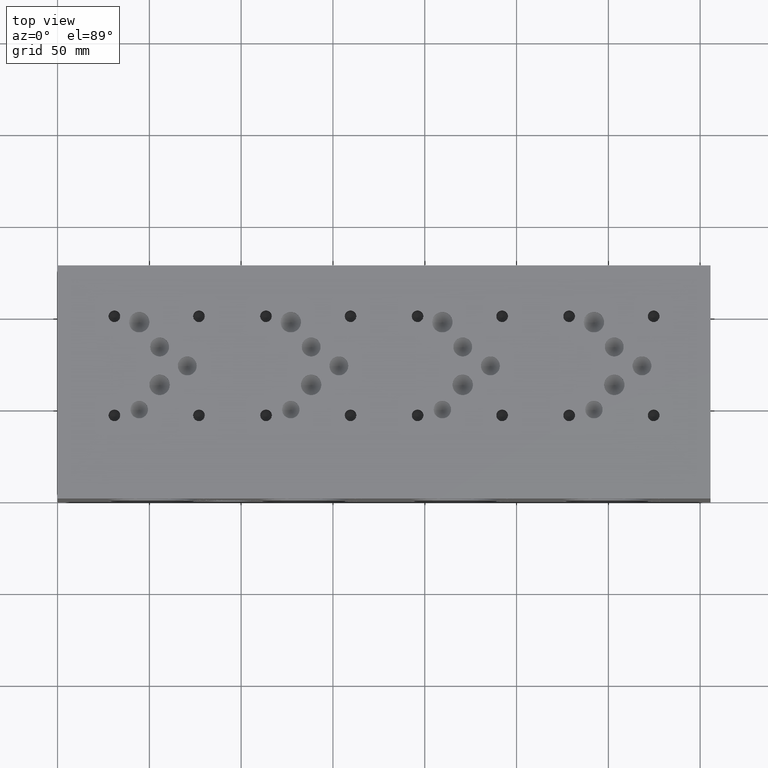
[diagram: clean part render]
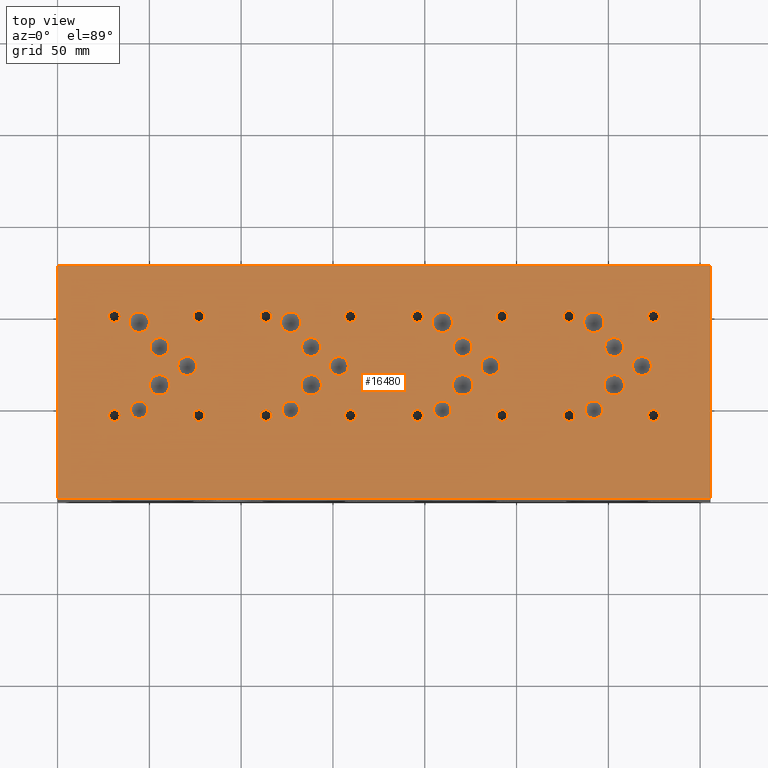
[diagram: same view with one face highlighted and labeled with its STEP entity id]
A machine part, top view. The second image highlights one B-rep face of the part: STEP entity #16480.
In plain terms, the highlighted planar face has unit normal (0, 0, 1).
Its self-contained STEP definition (entity closure, byte-faithful):
#591=CIRCLE('',#17084,4.7625);
#592=CIRCLE('',#17085,4.7625);
#595=CIRCLE('',#17090,4.7625);
#596=CIRCLE('',#17091,4.7625);
#599=CIRCLE('',#17096,4.7625);
#600=CIRCLE('',#17097,4.7625);
#603=CIRCLE('',#17102,4.7625);
#604=CIRCLE('',#17103,4.7625);
#607=CIRCLE('',#17108,5.5626);
#608=CIRCLE('',#17109,5.5626);
#611=CIRCLE('',#17114,5.5626);
#612=CIRCLE('',#17115,5.5626);
#615=CIRCLE('',#17120,5.5626);
#616=CIRCLE('',#17121,5.5626);
#619=CIRCLE('',#17126,5.5626);
#620=CIRCLE('',#17127,5.5626);
#623=CIRCLE('',#17132,5.5626);
#624=CIRCLE('',#17133,5.5626);
#627=CIRCLE('',#17138,5.5626);
#628=CIRCLE('',#17139,5.5626);
#631=CIRCLE('',#17144,5.5626);
#632=CIRCLE('',#17145,5.5626);
#635=CIRCLE('',#17150,5.5626);
#636=CIRCLE('',#17151,5.5626);
#639=CIRCLE('',#17156,5.1562);
#640=CIRCLE('',#17157,5.1562);
#643=CIRCLE('',#17162,5.1562);
#644=CIRCLE('',#17163,5.1562);
#647=CIRCLE('',#17168,5.1562);
#648=CIRCLE('',#17169,5.1562);
#651=CIRCLE('',#17174,5.1562);
#652=CIRCLE('',#17175,5.1562);
#655=CIRCLE('',#17180,5.1562);
#656=CIRCLE('',#17181,5.1562);
#659=CIRCLE('',#17186,5.1562);
#660=CIRCLE('',#17187,5.1562);
#663=CIRCLE('',#17192,5.1562);
#664=CIRCLE('',#17193,5.1562);
#667=CIRCLE('',#17198,5.1562);
#668=CIRCLE('',#17199,5.1562);
#674=CIRCLE('',#17208,3.175);
#675=CIRCLE('',#17209,3.175);
#681=CIRCLE('',#17219,3.175);
#682=CIRCLE('',#17220,3.175);
#688=CIRCLE('',#17230,3.175);
#689=CIRCLE('',#17231,3.175);
#695=CIRCLE('',#17241,3.175);
#696=CIRCLE('',#17242,3.175);
#702=CIRCLE('',#17252,3.175);
#703=CIRCLE('',#17253,3.175);
#709=CIRCLE('',#17263,3.175);
#710=CIRCLE('',#17264,3.175);
#716=CIRCLE('',#17274,3.175);
#717=CIRCLE('',#17275,3.175);
#723=CIRCLE('',#17285,3.175);
#724=CIRCLE('',#17286,3.175);
#730=CIRCLE('',#17296,3.175);
#731=CIRCLE('',#17297,3.175);
#737=CIRCLE('',#17307,3.175);
#738=CIRCLE('',#17308,3.175);
#744=CIRCLE('',#17318,3.175);
#745=CIRCLE('',#17319,3.175);
#751=CIRCLE('',#17329,3.175);
#752=CIRCLE('',#17330,3.175);
#758=CIRCLE('',#17340,3.175);
#759=CIRCLE('',#17341,3.175);
#765=CIRCLE('',#17351,3.175);
#766=CIRCLE('',#17352,3.175);
#772=CIRCLE('',#17362,3.175);
#773=CIRCLE('',#17363,3.175);
#779=CIRCLE('',#17373,3.175);
#780=CIRCLE('',#17374,3.175);
#1449=FACE_BOUND('',#3334,.T.);
#1450=FACE_BOUND('',#3335,.T.);
#1451=FACE_BOUND('',#3336,.T.);
#1452=FACE_BOUND('',#3337,.T.);
#1453=FACE_BOUND('',#3338,.T.);
#1454=FACE_BOUND('',#3339,.T.);
#1455=FACE_BOUND('',#3340,.T.);
#1456=FACE_BOUND('',#3341,.T.);
#1457=FACE_BOUND('',#3342,.T.);
#1458=FACE_BOUND('',#3343,.T.);
#1459=FACE_BOUND('',#3344,.T.);
#1460=FACE_BOUND('',#3345,.T.);
#1461=FACE_BOUND('',#3346,.T.);
#1462=FACE_BOUND('',#3347,.T.);
#1463=FACE_BOUND('',#3348,.T.);
#1464=FACE_BOUND('',#3349,.T.);
#1465=FACE_BOUND('',#3350,.T.);
#1466=FACE_BOUND('',#3351,.T.);
#1467=FACE_BOUND('',#3352,.T.);
#1468=FACE_BOUND('',#3353,.T.);
#1469=FACE_BOUND('',#3354,.T.);
#1470=FACE_BOUND('',#3355,.T.);
#1471=FACE_BOUND('',#3356,.T.);
#1472=FACE_BOUND('',#3357,.T.);
#1473=FACE_BOUND('',#3358,.T.);
#1474=FACE_BOUND('',#3359,.T.);
#1475=FACE_BOUND('',#3360,.T.);
#1476=FACE_BOUND('',#3361,.T.);
#1477=FACE_BOUND('',#3362,.T.);
#1478=FACE_BOUND('',#3363,.T.);
#1479=FACE_BOUND('',#3364,.T.);
#1480=FACE_BOUND('',#3365,.T.);
#1481=FACE_BOUND('',#3366,.T.);
#1482=FACE_BOUND('',#3367,.T.);
#1483=FACE_BOUND('',#3368,.T.);
#1484=FACE_BOUND('',#3369,.T.);
#2348=FACE_OUTER_BOUND('',#3333,.T.);
#3333=EDGE_LOOP('',(#14566,#14567,#14568,#14569));
#3334=EDGE_LOOP('',(#14570,#14571));
#3335=EDGE_LOOP('',(#14572,#14573));
#3336=EDGE_LOOP('',(#14574,#14575));
#3337=EDGE_LOOP('',(#14576,#14577));
#3338=EDGE_LOOP('',(#14578,#14579));
#3339=EDGE_LOOP('',(#14580,#14581));
#3340=EDGE_LOOP('',(#14582,#14583));
#3341=EDGE_LOOP('',(#14584,#14585));
#3342=EDGE_LOOP('',(#14586,#14587));
#3343=EDGE_LOOP('',(#14588,#14589));
#3344=EDGE_LOOP('',(#14590,#14591));
#3345=EDGE_LOOP('',(#14592,#14593));
#3346=EDGE_LOOP('',(#14594,#14595));
#3347=EDGE_LOOP('',(#14596,#14597));
#3348=EDGE_LOOP('',(#14598,#14599));
#3349=EDGE_LOOP('',(#14600,#14601));
#3350=EDGE_LOOP('',(#14602,#14603));
#3351=EDGE_LOOP('',(#14604,#14605));
#3352=EDGE_LOOP('',(#14606,#14607));
#3353=EDGE_LOOP('',(#14608,#14609));
#3354=EDGE_LOOP('',(#14610,#14611));
#3355=EDGE_LOOP('',(#14612,#14613));
#3356=EDGE_LOOP('',(#14614,#14615));
#3357=EDGE_LOOP('',(#14616,#14617));
#3358=EDGE_LOOP('',(#14618,#14619));
#3359=EDGE_LOOP('',(#14620,#14621));
#3360=EDGE_LOOP('',(#14622,#14623));
#3361=EDGE_LOOP('',(#14624,#14625));
#3362=EDGE_LOOP('',(#14626,#14627));
#3363=EDGE_LOOP('',(#14628,#14629));
#3364=EDGE_LOOP('',(#14630,#14631));
#3365=EDGE_LOOP('',(#14632,#14633));
#3366=EDGE_LOOP('',(#14634,#14635));
#3367=EDGE_LOOP('',(#14636,#14637));
#3368=EDGE_LOOP('',(#14638,#14639));
#3369=EDGE_LOOP('',(#14640,#14641));
#3406=LINE('',#21515,#4817);
#4443=LINE('',#26752,#5854);
#4486=LINE('',#26989,#5897);
#4781=LINE('',#28631,#6192);
#4817=VECTOR('',#17736,10.);
#5854=VECTOR('',#19477,10.);
#5897=VECTOR('',#19554,10.);
#6192=VECTOR('',#21431,10.);
#6217=VERTEX_POINT('',#21512);
#6218=VERTEX_POINT('',#21514);
#7170=VERTEX_POINT('',#26751);
#7219=VERTEX_POINT('',#26987);
#7369=VERTEX_POINT('',#27448);
#7370=VERTEX_POINT('',#27449);
#7374=VERTEX_POINT('',#27461);
#7375=VERTEX_POINT('',#27462);
#7379=VERTEX_POINT('',#27474);
#7380=VERTEX_POINT('',#27475);
#7384=VERTEX_POINT('',#27487);
#7385=VERTEX_POINT('',#27488);
#7389=VERTEX_POINT('',#27500);
#7390=VERTEX_POINT('',#27501);
#7394=VERTEX_POINT('',#27513);
#7395=VERTEX_POINT('',#27514);
#7399=VERTEX_POINT('',#27526);
#7400=VERTEX_POINT('',#27527);
#7404=VERTEX_POINT('',#27539);
#7405=VERTEX_POINT('',#27540);
#7409=VERTEX_POINT('',#27552);
#7410=VERTEX_POINT('',#27553);
#7414=VERTEX_POINT('',#27565);
#7415=VERTEX_POINT('',#27566);
#7419=VERTEX_POINT('',#27578);
#7420=VERTEX_POINT('',#27579);
#7424=VERTEX_POINT('',#27591);
#7425=VERTEX_POINT('',#27592);
#7429=VERTEX_POINT('',#27604);
#7430=VERTEX_POINT('',#27605);
#7434=VERTEX_POINT('',#27617);
#7435=VERTEX_POINT('',#27618);
#7439=VERTEX_POINT('',#27630);
#7440=VERTEX_POINT('',#27631);
#7444=VERTEX_POINT('',#27643);
#7445=VERTEX_POINT('',#27644);
#7449=VERTEX_POINT('',#27656);
#7450=VERTEX_POINT('',#27657);
#7454=VERTEX_POINT('',#27669);
#7455=VERTEX_POINT('',#27670);
#7459=VERTEX_POINT('',#27682);
#7460=VERTEX_POINT('',#27683);
#7464=VERTEX_POINT('',#27695);
#7465=VERTEX_POINT('',#27696);
#7472=VERTEX_POINT('',#27715);
#7473=VERTEX_POINT('',#27716);
#7480=VERTEX_POINT('',#27737);
#7481=VERTEX_POINT('',#27738);
#7488=VERTEX_POINT('',#27759);
#7489=VERTEX_POINT('',#27760);
#7496=VERTEX_POINT('',#27781);
#7497=VERTEX_POINT('',#27782);
#7504=VERTEX_POINT('',#27803);
#7505=VERTEX_POINT('',#27804);
#7512=VERTEX_POINT('',#27825);
#7513=VERTEX_POINT('',#27826);
#7520=VERTEX_POINT('',#27847);
#7521=VERTEX_POINT('',#27848);
#7528=VERTEX_POINT('',#27869);
#7529=VERTEX_POINT('',#27870);
#7536=VERTEX_POINT('',#27891);
#7537=VERTEX_POINT('',#27892);
#7544=VERTEX_POINT('',#27913);
#7545=VERTEX_POINT('',#27914);
#7552=VERTEX_POINT('',#27935);
#7553=VERTEX_POINT('',#27936);
#7560=VERTEX_POINT('',#27957);
#7561=VERTEX_POINT('',#27958);
#7568=VERTEX_POINT('',#27979);
#7569=VERTEX_POINT('',#27980);
#7576=VERTEX_POINT('',#28001);
#7577=VERTEX_POINT('',#28002);
#7584=VERTEX_POINT('',#28023);
#7585=VERTEX_POINT('',#28024);
#7592=VERTEX_POINT('',#28045);
#7593=VERTEX_POINT('',#28046);
#7811=EDGE_CURVE('',#6218,#6217,#3406,.T.);
#9229=EDGE_CURVE('',#7170,#6218,#4443,.T.);
#9295=EDGE_CURVE('',#6217,#7219,#4486,.T.);
#9514=EDGE_CURVE('',#7369,#7370,#591,.T.);
#9515=EDGE_CURVE('',#7370,#7369,#592,.T.);
#9520=EDGE_CURVE('',#7374,#7375,#595,.T.);
#9521=EDGE_CURVE('',#7375,#7374,#596,.T.);
#9526=EDGE_CURVE('',#7379,#7380,#599,.T.);
#9527=EDGE_CURVE('',#7380,#7379,#600,.T.);
#9532=EDGE_CURVE('',#7384,#7385,#603,.T.);
#9533=EDGE_CURVE('',#7385,#7384,#604,.T.);
#9538=EDGE_CURVE('',#7389,#7390,#607,.T.);
#9539=EDGE_CURVE('',#7390,#7389,#608,.T.);
#9544=EDGE_CURVE('',#7394,#7395,#611,.T.);
#9545=EDGE_CURVE('',#7395,#7394,#612,.T.);
#9550=EDGE_CURVE('',#7399,#7400,#615,.T.);
#9551=EDGE_CURVE('',#7400,#7399,#616,.T.);
#9556=EDGE_CURVE('',#7404,#7405,#619,.T.);
#9557=EDGE_CURVE('',#7405,#7404,#620,.T.);
#9562=EDGE_CURVE('',#7409,#7410,#623,.T.);
#9563=EDGE_CURVE('',#7410,#7409,#624,.T.);
#9568=EDGE_CURVE('',#7414,#7415,#627,.T.);
#9569=EDGE_CURVE('',#7415,#7414,#628,.T.);
#9574=EDGE_CURVE('',#7419,#7420,#631,.T.);
#9575=EDGE_CURVE('',#7420,#7419,#632,.T.);
#9580=EDGE_CURVE('',#7424,#7425,#635,.T.);
#9581=EDGE_CURVE('',#7425,#7424,#636,.T.);
#9586=EDGE_CURVE('',#7429,#7430,#639,.T.);
#9587=EDGE_CURVE('',#7430,#7429,#640,.T.);
#9592=EDGE_CURVE('',#7434,#7435,#643,.T.);
#9593=EDGE_CURVE('',#7435,#7434,#644,.T.);
#9598=EDGE_CURVE('',#7439,#7440,#647,.T.);
#9599=EDGE_CURVE('',#7440,#7439,#648,.T.);
#9604=EDGE_CURVE('',#7444,#7445,#651,.T.);
#9605=EDGE_CURVE('',#7445,#7444,#652,.T.);
#9610=EDGE_CURVE('',#7449,#7450,#655,.T.);
#9611=EDGE_CURVE('',#7450,#7449,#656,.T.);
#9616=EDGE_CURVE('',#7454,#7455,#659,.T.);
#9617=EDGE_CURVE('',#7455,#7454,#660,.T.);
#9622=EDGE_CURVE('',#7459,#7460,#663,.T.);
#9623=EDGE_CURVE('',#7460,#7459,#664,.T.);
#9628=EDGE_CURVE('',#7464,#7465,#667,.T.);
#9629=EDGE_CURVE('',#7465,#7464,#668,.T.);
#9637=EDGE_CURVE('',#7472,#7473,#674,.T.);
#9638=EDGE_CURVE('',#7473,#7472,#675,.T.);
#9647=EDGE_CURVE('',#7480,#7481,#681,.T.);
#9648=EDGE_CURVE('',#7481,#7480,#682,.T.);
#9657=EDGE_CURVE('',#7488,#7489,#688,.T.);
#9658=EDGE_CURVE('',#7489,#7488,#689,.T.);
#9667=EDGE_CURVE('',#7496,#7497,#695,.T.);
#9668=EDGE_CURVE('',#7497,#7496,#696,.T.);
#9677=EDGE_CURVE('',#7504,#7505,#702,.T.);
#9678=EDGE_CURVE('',#7505,#7504,#703,.T.);
#9687=EDGE_CURVE('',#7512,#7513,#709,.T.);
#9688=EDGE_CURVE('',#7513,#7512,#710,.T.);
#9697=EDGE_CURVE('',#7520,#7521,#716,.T.);
#9698=EDGE_CURVE('',#7521,#7520,#717,.T.);
#9707=EDGE_CURVE('',#7528,#7529,#723,.T.);
#9708=EDGE_CURVE('',#7529,#7528,#724,.T.);
#9717=EDGE_CURVE('',#7536,#7537,#730,.T.);
#9718=EDGE_CURVE('',#7537,#7536,#731,.T.);
#9727=EDGE_CURVE('',#7544,#7545,#737,.T.);
#9728=EDGE_CURVE('',#7545,#7544,#738,.T.);
#9737=EDGE_CURVE('',#7552,#7553,#744,.T.);
#9738=EDGE_CURVE('',#7553,#7552,#745,.T.);
#9747=EDGE_CURVE('',#7560,#7561,#751,.T.);
#9748=EDGE_CURVE('',#7561,#7560,#752,.T.);
#9757=EDGE_CURVE('',#7568,#7569,#758,.T.);
#9758=EDGE_CURVE('',#7569,#7568,#759,.T.);
#9767=EDGE_CURVE('',#7576,#7577,#765,.T.);
#9768=EDGE_CURVE('',#7577,#7576,#766,.T.);
#9777=EDGE_CURVE('',#7584,#7585,#772,.T.);
#9778=EDGE_CURVE('',#7585,#7584,#773,.T.);
#9787=EDGE_CURVE('',#7592,#7593,#779,.T.);
#9788=EDGE_CURVE('',#7593,#7592,#780,.T.);
#10065=EDGE_CURVE('',#7219,#7170,#4781,.T.);
#14566=ORIENTED_EDGE('',*,*,#7811,.T.);
#14567=ORIENTED_EDGE('',*,*,#9295,.T.);
#14568=ORIENTED_EDGE('',*,*,#10065,.T.);
#14569=ORIENTED_EDGE('',*,*,#9229,.T.);
#14570=ORIENTED_EDGE('',*,*,#9514,.T.);
#14571=ORIENTED_EDGE('',*,*,#9515,.T.);
#14572=ORIENTED_EDGE('',*,*,#9520,.T.);
#14573=ORIENTED_EDGE('',*,*,#9521,.T.);
#14574=ORIENTED_EDGE('',*,*,#9526,.T.);
#14575=ORIENTED_EDGE('',*,*,#9527,.T.);
#14576=ORIENTED_EDGE('',*,*,#9532,.T.);
#14577=ORIENTED_EDGE('',*,*,#9533,.T.);
#14578=ORIENTED_EDGE('',*,*,#9538,.T.);
#14579=ORIENTED_EDGE('',*,*,#9539,.T.);
#14580=ORIENTED_EDGE('',*,*,#9544,.T.);
#14581=ORIENTED_EDGE('',*,*,#9545,.T.);
#14582=ORIENTED_EDGE('',*,*,#9550,.T.);
#14583=ORIENTED_EDGE('',*,*,#9551,.T.);
#14584=ORIENTED_EDGE('',*,*,#9556,.T.);
#14585=ORIENTED_EDGE('',*,*,#9557,.T.);
#14586=ORIENTED_EDGE('',*,*,#9562,.T.);
#14587=ORIENTED_EDGE('',*,*,#9563,.T.);
#14588=ORIENTED_EDGE('',*,*,#9568,.T.);
#14589=ORIENTED_EDGE('',*,*,#9569,.T.);
#14590=ORIENTED_EDGE('',*,*,#9574,.T.);
#14591=ORIENTED_EDGE('',*,*,#9575,.T.);
#14592=ORIENTED_EDGE('',*,*,#9580,.T.);
#14593=ORIENTED_EDGE('',*,*,#9581,.T.);
#14594=ORIENTED_EDGE('',*,*,#9586,.T.);
#14595=ORIENTED_EDGE('',*,*,#9587,.T.);
#14596=ORIENTED_EDGE('',*,*,#9592,.T.);
#14597=ORIENTED_EDGE('',*,*,#9593,.T.);
#14598=ORIENTED_EDGE('',*,*,#9598,.T.);
#14599=ORIENTED_EDGE('',*,*,#9599,.T.);
#14600=ORIENTED_EDGE('',*,*,#9604,.T.);
#14601=ORIENTED_EDGE('',*,*,#9605,.T.);
#14602=ORIENTED_EDGE('',*,*,#9610,.T.);
#14603=ORIENTED_EDGE('',*,*,#9611,.T.);
#14604=ORIENTED_EDGE('',*,*,#9616,.T.);
#14605=ORIENTED_EDGE('',*,*,#9617,.T.);
#14606=ORIENTED_EDGE('',*,*,#9622,.T.);
#14607=ORIENTED_EDGE('',*,*,#9623,.T.);
#14608=ORIENTED_EDGE('',*,*,#9628,.T.);
#14609=ORIENTED_EDGE('',*,*,#9629,.T.);
#14610=ORIENTED_EDGE('',*,*,#9637,.T.);
#14611=ORIENTED_EDGE('',*,*,#9638,.T.);
#14612=ORIENTED_EDGE('',*,*,#9647,.T.);
#14613=ORIENTED_EDGE('',*,*,#9648,.T.);
#14614=ORIENTED_EDGE('',*,*,#9657,.T.);
#14615=ORIENTED_EDGE('',*,*,#9658,.T.);
#14616=ORIENTED_EDGE('',*,*,#9667,.T.);
#14617=ORIENTED_EDGE('',*,*,#9668,.T.);
#14618=ORIENTED_EDGE('',*,*,#9677,.T.);
#14619=ORIENTED_EDGE('',*,*,#9678,.T.);
#14620=ORIENTED_EDGE('',*,*,#9687,.T.);
#14621=ORIENTED_EDGE('',*,*,#9688,.T.);
#14622=ORIENTED_EDGE('',*,*,#9697,.T.);
#14623=ORIENTED_EDGE('',*,*,#9698,.T.);
#14624=ORIENTED_EDGE('',*,*,#9707,.T.);
#14625=ORIENTED_EDGE('',*,*,#9708,.T.);
#14626=ORIENTED_EDGE('',*,*,#9717,.T.);
#14627=ORIENTED_EDGE('',*,*,#9718,.T.);
#14628=ORIENTED_EDGE('',*,*,#9727,.T.);
#14629=ORIENTED_EDGE('',*,*,#9728,.T.);
#14630=ORIENTED_EDGE('',*,*,#9737,.T.);
#14631=ORIENTED_EDGE('',*,*,#9738,.T.);
#14632=ORIENTED_EDGE('',*,*,#9747,.T.);
#14633=ORIENTED_EDGE('',*,*,#9748,.T.);
#14634=ORIENTED_EDGE('',*,*,#9757,.T.);
#14635=ORIENTED_EDGE('',*,*,#9758,.T.);
#14636=ORIENTED_EDGE('',*,*,#9767,.T.);
#14637=ORIENTED_EDGE('',*,*,#9768,.T.);
#14638=ORIENTED_EDGE('',*,*,#9777,.T.);
#14639=ORIENTED_EDGE('',*,*,#9778,.T.);
#14640=ORIENTED_EDGE('',*,*,#9787,.T.);
#14641=ORIENTED_EDGE('',*,*,#9788,.T.);
#15073=PLANE('',#17671);
#16480=ADVANCED_FACE('',(#2348,#1449,#1450,#1451,#1452,#1453,#1454,#1455,
#1456,#1457,#1458,#1459,#1460,#1461,#1462,#1463,#1464,#1465,#1466,#1467,
#1468,#1469,#1470,#1471,#1472,#1473,#1474,#1475,#1476,#1477,#1478,#1479,
#1480,#1481,#1482,#1483,#1484),#15073,.T.);
#17084=AXIS2_PLACEMENT_3D('',#27450,#20070,#20071);
#17085=AXIS2_PLACEMENT_3D('',#27451,#20072,#20073);
#17090=AXIS2_PLACEMENT_3D('',#27463,#20084,#20085);
#17091=AXIS2_PLACEMENT_3D('',#27464,#20086,#20087);
#17096=AXIS2_PLACEMENT_3D('',#27476,#20098,#20099);
#17097=AXIS2_PLACEMENT_3D('',#27477,#20100,#20101);
#17102=AXIS2_PLACEMENT_3D('',#27489,#20112,#20113);
#17103=AXIS2_PLACEMENT_3D('',#27490,#20114,#20115);
#17108=AXIS2_PLACEMENT_3D('',#27502,#20126,#20127);
#17109=AXIS2_PLACEMENT_3D('',#27503,#20128,#20129);
#17114=AXIS2_PLACEMENT_3D('',#27515,#20140,#20141);
#17115=AXIS2_PLACEMENT_3D('',#27516,#20142,#20143);
#17120=AXIS2_PLACEMENT_3D('',#27528,#20154,#20155);
#17121=AXIS2_PLACEMENT_3D('',#27529,#20156,#20157);
#17126=AXIS2_PLACEMENT_3D('',#27541,#20168,#20169);
#17127=AXIS2_PLACEMENT_3D('',#27542,#20170,#20171);
#17132=AXIS2_PLACEMENT_3D('',#27554,#20182,#20183);
#17133=AXIS2_PLACEMENT_3D('',#27555,#20184,#20185);
#17138=AXIS2_PLACEMENT_3D('',#27567,#20196,#20197);
#17139=AXIS2_PLACEMENT_3D('',#27568,#20198,#20199);
#17144=AXIS2_PLACEMENT_3D('',#27580,#20210,#20211);
#17145=AXIS2_PLACEMENT_3D('',#27581,#20212,#20213);
#17150=AXIS2_PLACEMENT_3D('',#27593,#20224,#20225);
#17151=AXIS2_PLACEMENT_3D('',#27594,#20226,#20227);
#17156=AXIS2_PLACEMENT_3D('',#27606,#20238,#20239);
#17157=AXIS2_PLACEMENT_3D('',#27607,#20240,#20241);
#17162=AXIS2_PLACEMENT_3D('',#27619,#20252,#20253);
#17163=AXIS2_PLACEMENT_3D('',#27620,#20254,#20255);
#17168=AXIS2_PLACEMENT_3D('',#27632,#20266,#20267);
#17169=AXIS2_PLACEMENT_3D('',#27633,#20268,#20269);
#17174=AXIS2_PLACEMENT_3D('',#27645,#20280,#20281);
#17175=AXIS2_PLACEMENT_3D('',#27646,#20282,#20283);
#17180=AXIS2_PLACEMENT_3D('',#27658,#20294,#20295);
#17181=AXIS2_PLACEMENT_3D('',#27659,#20296,#20297);
#17186=AXIS2_PLACEMENT_3D('',#27671,#20308,#20309);
#17187=AXIS2_PLACEMENT_3D('',#27672,#20310,#20311);
#17192=AXIS2_PLACEMENT_3D('',#27684,#20322,#20323);
#17193=AXIS2_PLACEMENT_3D('',#27685,#20324,#20325);
#17198=AXIS2_PLACEMENT_3D('',#27697,#20336,#20337);
#17199=AXIS2_PLACEMENT_3D('',#27698,#20338,#20339);
#17208=AXIS2_PLACEMENT_3D('',#27717,#20358,#20359);
#17209=AXIS2_PLACEMENT_3D('',#27718,#20360,#20361);
#17219=AXIS2_PLACEMENT_3D('',#27739,#20383,#20384);
#17220=AXIS2_PLACEMENT_3D('',#27740,#20385,#20386);
#17230=AXIS2_PLACEMENT_3D('',#27761,#20408,#20409);
#17231=AXIS2_PLACEMENT_3D('',#27762,#20410,#20411);
#17241=AXIS2_PLACEMENT_3D('',#27783,#20433,#20434);
#17242=AXIS2_PLACEMENT_3D('',#27784,#20435,#20436);
#17252=AXIS2_PLACEMENT_3D('',#27805,#20458,#20459);
#17253=AXIS2_PLACEMENT_3D('',#27806,#20460,#20461);
#17263=AXIS2_PLACEMENT_3D('',#27827,#20483,#20484);
#17264=AXIS2_PLACEMENT_3D('',#27828,#20485,#20486);
#17274=AXIS2_PLACEMENT_3D('',#27849,#20508,#20509);
#17275=AXIS2_PLACEMENT_3D('',#27850,#20510,#20511);
#17285=AXIS2_PLACEMENT_3D('',#27871,#20533,#20534);
#17286=AXIS2_PLACEMENT_3D('',#27872,#20535,#20536);
#17296=AXIS2_PLACEMENT_3D('',#27893,#20558,#20559);
#17297=AXIS2_PLACEMENT_3D('',#27894,#20560,#20561);
#17307=AXIS2_PLACEMENT_3D('',#27915,#20583,#20584);
#17308=AXIS2_PLACEMENT_3D('',#27916,#20585,#20586);
#17318=AXIS2_PLACEMENT_3D('',#27937,#20608,#20609);
#17319=AXIS2_PLACEMENT_3D('',#27938,#20610,#20611);
#17329=AXIS2_PLACEMENT_3D('',#27959,#20633,#20634);
#17330=AXIS2_PLACEMENT_3D('',#27960,#20635,#20636);
#17340=AXIS2_PLACEMENT_3D('',#27981,#20658,#20659);
#17341=AXIS2_PLACEMENT_3D('',#27982,#20660,#20661);
#17351=AXIS2_PLACEMENT_3D('',#28003,#20683,#20684);
#17352=AXIS2_PLACEMENT_3D('',#28004,#20685,#20686);
#17362=AXIS2_PLACEMENT_3D('',#28025,#20708,#20709);
#17363=AXIS2_PLACEMENT_3D('',#28026,#20710,#20711);
#17373=AXIS2_PLACEMENT_3D('',#28047,#20733,#20734);
#17374=AXIS2_PLACEMENT_3D('',#28048,#20735,#20736);
#17671=AXIS2_PLACEMENT_3D('',#28634,#21436,#21437);
#17736=DIRECTION('',(1.,0.,0.));
#19477=DIRECTION('',(0.,-1.,0.));
#19554=DIRECTION('',(0.,1.,0.));
#20070=DIRECTION('center_axis',(0.,0.,-1.));
#20071=DIRECTION('ref_axis',(1.,0.,0.));
#20072=DIRECTION('center_axis',(0.,0.,-1.));
#20073=DIRECTION('ref_axis',(1.,0.,0.));
#20084=DIRECTION('center_axis',(0.,0.,-1.));
#20085=DIRECTION('ref_axis',(1.,0.,0.));
#20086=DIRECTION('center_axis',(0.,0.,-1.));
#20087=DIRECTION('ref_axis',(1.,0.,0.));
#20098=DIRECTION('center_axis',(0.,0.,-1.));
#20099=DIRECTION('ref_axis',(1.,0.,0.));
#20100=DIRECTION('center_axis',(0.,0.,-1.));
#20101=DIRECTION('ref_axis',(1.,0.,0.));
#20112=DIRECTION('center_axis',(0.,0.,-1.));
#20113=DIRECTION('ref_axis',(1.,0.,0.));
#20114=DIRECTION('center_axis',(0.,0.,-1.));
#20115=DIRECTION('ref_axis',(1.,0.,0.));
#20126=DIRECTION('center_axis',(0.,0.,-1.));
#20127=DIRECTION('ref_axis',(1.,0.,0.));
#20128=DIRECTION('center_axis',(0.,0.,-1.));
#20129=DIRECTION('ref_axis',(1.,0.,0.));
#20140=DIRECTION('center_axis',(0.,0.,-1.));
#20141=DIRECTION('ref_axis',(1.,0.,0.));
#20142=DIRECTION('center_axis',(0.,0.,-1.));
#20143=DIRECTION('ref_axis',(1.,0.,0.));
#20154=DIRECTION('center_axis',(0.,0.,-1.));
#20155=DIRECTION('ref_axis',(1.,0.,0.));
#20156=DIRECTION('center_axis',(0.,0.,-1.));
#20157=DIRECTION('ref_axis',(1.,0.,0.));
#20168=DIRECTION('center_axis',(0.,0.,-1.));
#20169=DIRECTION('ref_axis',(1.,0.,0.));
#20170=DIRECTION('center_axis',(0.,0.,-1.));
#20171=DIRECTION('ref_axis',(1.,0.,0.));
#20182=DIRECTION('center_axis',(0.,0.,-1.));
#20183=DIRECTION('ref_axis',(1.,0.,0.));
#20184=DIRECTION('center_axis',(0.,0.,-1.));
#20185=DIRECTION('ref_axis',(1.,0.,0.));
#20196=DIRECTION('center_axis',(0.,0.,-1.));
#20197=DIRECTION('ref_axis',(1.,0.,0.));
#20198=DIRECTION('center_axis',(0.,0.,-1.));
#20199=DIRECTION('ref_axis',(1.,0.,0.));
#20210=DIRECTION('center_axis',(0.,0.,-1.));
#20211=DIRECTION('ref_axis',(1.,0.,0.));
#20212=DIRECTION('center_axis',(0.,0.,-1.));
#20213=DIRECTION('ref_axis',(1.,0.,0.));
#20224=DIRECTION('center_axis',(0.,0.,-1.));
#20225=DIRECTION('ref_axis',(1.,0.,0.));
#20226=DIRECTION('center_axis',(0.,0.,-1.));
#20227=DIRECTION('ref_axis',(1.,0.,0.));
#20238=DIRECTION('center_axis',(0.,0.,-1.));
#20239=DIRECTION('ref_axis',(1.,0.,0.));
#20240=DIRECTION('center_axis',(0.,0.,-1.));
#20241=DIRECTION('ref_axis',(1.,0.,0.));
#20252=DIRECTION('center_axis',(0.,0.,-1.));
#20253=DIRECTION('ref_axis',(1.,0.,0.));
#20254=DIRECTION('center_axis',(0.,0.,-1.));
#20255=DIRECTION('ref_axis',(1.,0.,0.));
#20266=DIRECTION('center_axis',(0.,0.,-1.));
#20267=DIRECTION('ref_axis',(1.,0.,0.));
#20268=DIRECTION('center_axis',(0.,0.,-1.));
#20269=DIRECTION('ref_axis',(1.,0.,0.));
#20280=DIRECTION('center_axis',(0.,0.,-1.));
#20281=DIRECTION('ref_axis',(1.,0.,0.));
#20282=DIRECTION('center_axis',(0.,0.,-1.));
#20283=DIRECTION('ref_axis',(1.,0.,0.));
#20294=DIRECTION('center_axis',(0.,0.,-1.));
#20295=DIRECTION('ref_axis',(1.,0.,0.));
#20296=DIRECTION('center_axis',(0.,0.,-1.));
#20297=DIRECTION('ref_axis',(1.,0.,0.));
#20308=DIRECTION('center_axis',(0.,0.,-1.));
#20309=DIRECTION('ref_axis',(1.,0.,0.));
#20310=DIRECTION('center_axis',(0.,0.,-1.));
#20311=DIRECTION('ref_axis',(1.,0.,0.));
#20322=DIRECTION('center_axis',(0.,0.,-1.));
#20323=DIRECTION('ref_axis',(1.,0.,0.));
#20324=DIRECTION('center_axis',(0.,0.,-1.));
#20325=DIRECTION('ref_axis',(1.,0.,0.));
#20336=DIRECTION('center_axis',(0.,0.,-1.));
#20337=DIRECTION('ref_axis',(1.,0.,0.));
#20338=DIRECTION('center_axis',(0.,0.,-1.));
#20339=DIRECTION('ref_axis',(1.,0.,0.));
#20358=DIRECTION('center_axis',(0.,0.,-1.));
#20359=DIRECTION('ref_axis',(1.,0.,0.));
#20360=DIRECTION('center_axis',(0.,0.,-1.));
#20361=DIRECTION('ref_axis',(1.,0.,0.));
#20383=DIRECTION('center_axis',(0.,0.,-1.));
#20384=DIRECTION('ref_axis',(1.,0.,0.));
#20385=DIRECTION('center_axis',(0.,0.,-1.));
#20386=DIRECTION('ref_axis',(1.,0.,0.));
#20408=DIRECTION('center_axis',(0.,0.,-1.));
#20409=DIRECTION('ref_axis',(1.,0.,0.));
#20410=DIRECTION('center_axis',(0.,0.,-1.));
#20411=DIRECTION('ref_axis',(1.,0.,0.));
#20433=DIRECTION('center_axis',(0.,0.,-1.));
#20434=DIRECTION('ref_axis',(1.,0.,0.));
#20435=DIRECTION('center_axis',(0.,0.,-1.));
#20436=DIRECTION('ref_axis',(1.,0.,0.));
#20458=DIRECTION('center_axis',(0.,0.,-1.));
#20459=DIRECTION('ref_axis',(1.,0.,0.));
#20460=DIRECTION('center_axis',(0.,0.,-1.));
#20461=DIRECTION('ref_axis',(1.,0.,0.));
#20483=DIRECTION('center_axis',(0.,0.,-1.));
#20484=DIRECTION('ref_axis',(1.,0.,0.));
#20485=DIRECTION('center_axis',(0.,0.,-1.));
#20486=DIRECTION('ref_axis',(1.,0.,0.));
#20508=DIRECTION('center_axis',(0.,0.,-1.));
#20509=DIRECTION('ref_axis',(1.,0.,0.));
#20510=DIRECTION('center_axis',(0.,0.,-1.));
#20511=DIRECTION('ref_axis',(1.,0.,0.));
#20533=DIRECTION('center_axis',(0.,0.,-1.));
#20534=DIRECTION('ref_axis',(1.,0.,0.));
#20535=DIRECTION('center_axis',(0.,0.,-1.));
#20536=DIRECTION('ref_axis',(1.,0.,0.));
#20558=DIRECTION('center_axis',(0.,0.,-1.));
#20559=DIRECTION('ref_axis',(1.,0.,0.));
#20560=DIRECTION('center_axis',(0.,0.,-1.));
#20561=DIRECTION('ref_axis',(1.,0.,0.));
#20583=DIRECTION('center_axis',(0.,0.,-1.));
#20584=DIRECTION('ref_axis',(1.,0.,0.));
#20585=DIRECTION('center_axis',(0.,0.,-1.));
#20586=DIRECTION('ref_axis',(1.,0.,0.));
#20608=DIRECTION('center_axis',(0.,0.,-1.));
#20609=DIRECTION('ref_axis',(1.,0.,0.));
#20610=DIRECTION('center_axis',(0.,0.,-1.));
#20611=DIRECTION('ref_axis',(1.,0.,0.));
#20633=DIRECTION('center_axis',(0.,0.,-1.));
#20634=DIRECTION('ref_axis',(1.,0.,0.));
#20635=DIRECTION('center_axis',(0.,0.,-1.));
#20636=DIRECTION('ref_axis',(1.,0.,0.));
#20658=DIRECTION('center_axis',(0.,0.,-1.));
#20659=DIRECTION('ref_axis',(1.,0.,0.));
#20660=DIRECTION('center_axis',(0.,0.,-1.));
#20661=DIRECTION('ref_axis',(1.,0.,0.));
#20683=DIRECTION('center_axis',(0.,0.,-1.));
#20684=DIRECTION('ref_axis',(1.,0.,0.));
#20685=DIRECTION('center_axis',(0.,0.,-1.));
#20686=DIRECTION('ref_axis',(1.,0.,0.));
#20708=DIRECTION('center_axis',(0.,0.,-1.));
#20709=DIRECTION('ref_axis',(1.,0.,0.));
#20710=DIRECTION('center_axis',(0.,0.,-1.));
#20711=DIRECTION('ref_axis',(1.,0.,0.));
#20733=DIRECTION('center_axis',(0.,0.,-1.));
#20734=DIRECTION('ref_axis',(1.,0.,0.));
#20735=DIRECTION('center_axis',(0.,0.,-1.));
#20736=DIRECTION('ref_axis',(1.,0.,0.));
#21431=DIRECTION('',(-1.,0.,0.));
#21436=DIRECTION('center_axis',(0.,0.,1.));
#21437=DIRECTION('ref_axis',(1.,0.,0.));
#21512=CARTESIAN_POINT('',(355.6,0.,127.));
#21514=CARTESIAN_POINT('',(0.,0.,127.));
#21515=CARTESIAN_POINT('',(0.,0.,127.));
#26751=CARTESIAN_POINT('',(0.,127.,127.));
#26752=CARTESIAN_POINT('',(0.,127.,127.));
#26987=CARTESIAN_POINT('',(355.6,127.,127.));
#26989=CARTESIAN_POINT('',(355.6,0.,127.));
#27448=CARTESIAN_POINT('',(214.3125,48.387,127.));
#27449=CARTESIAN_POINT('',(204.7875,48.387,127.));
#27450=CARTESIAN_POINT('Origin',(209.55,48.387,127.));
#27451=CARTESIAN_POINT('Origin',(209.55,48.387,127.));
#27461=CARTESIAN_POINT('',(49.20742,48.387,127.));
#27462=CARTESIAN_POINT('',(39.68242,48.387,127.));
#27463=CARTESIAN_POINT('Origin',(44.44492,48.387,127.));
#27464=CARTESIAN_POINT('Origin',(44.44492,48.387,127.));
#27474=CARTESIAN_POINT('',(131.7625,48.387,127.));
#27475=CARTESIAN_POINT('',(122.2375,48.387,127.));
#27476=CARTESIAN_POINT('Origin',(127.,48.387,127.));
#27477=CARTESIAN_POINT('Origin',(127.,48.387,127.));
#27487=CARTESIAN_POINT('',(296.8625,48.387,127.));
#27488=CARTESIAN_POINT('',(287.3375,48.387,127.));
#27489=CARTESIAN_POINT('Origin',(292.1,48.387,127.));
#27490=CARTESIAN_POINT('Origin',(292.1,48.387,127.));
#27500=CARTESIAN_POINT('',(297.6626,96.012,127.));
#27501=CARTESIAN_POINT('',(286.5374,96.012,127.));
#27502=CARTESIAN_POINT('Origin',(292.1,96.012,127.));
#27503=CARTESIAN_POINT('Origin',(292.1,96.012,127.));
#27513=CARTESIAN_POINT('',(215.1126,96.012,127.));
#27514=CARTESIAN_POINT('',(203.9874,96.012,127.));
#27515=CARTESIAN_POINT('Origin',(209.55,96.012,127.));
#27516=CARTESIAN_POINT('Origin',(209.55,96.012,127.));
#27526=CARTESIAN_POINT('',(132.5626,96.012,127.));
#27527=CARTESIAN_POINT('',(121.4374,96.012,127.));
#27528=CARTESIAN_POINT('Origin',(127.,96.012,127.));
#27529=CARTESIAN_POINT('Origin',(127.,96.012,127.));
#27539=CARTESIAN_POINT('',(50.00752,96.012,127.));
#27540=CARTESIAN_POINT('',(38.88232,96.012,127.));
#27541=CARTESIAN_POINT('Origin',(44.44492,96.012,127.));
#27542=CARTESIAN_POINT('Origin',(44.44492,96.012,127.));
#27552=CARTESIAN_POINT('',(61.11748,61.88202,127.));
#27553=CARTESIAN_POINT('',(49.99228,61.88202,127.));
#27554=CARTESIAN_POINT('Origin',(55.55488,61.88202,127.));
#27555=CARTESIAN_POINT('Origin',(55.55488,61.88202,127.));
#27565=CARTESIAN_POINT('',(143.6624,61.8744,127.));
#27566=CARTESIAN_POINT('',(132.5372,61.8744,127.));
#27567=CARTESIAN_POINT('Origin',(138.0998,61.8744,127.));
#27568=CARTESIAN_POINT('Origin',(138.0998,61.8744,127.));
#27578=CARTESIAN_POINT('',(226.2124,61.8744,127.));
#27579=CARTESIAN_POINT('',(215.0872,61.8744,127.));
#27580=CARTESIAN_POINT('Origin',(220.6498,61.8744,127.));
#27581=CARTESIAN_POINT('Origin',(220.6498,61.8744,127.));
#27591=CARTESIAN_POINT('',(308.7624,61.8744,127.));
#27592=CARTESIAN_POINT('',(297.6372,61.8744,127.));
#27593=CARTESIAN_POINT('Origin',(303.1998,61.8744,127.));
#27594=CARTESIAN_POINT('Origin',(303.1998,61.8744,127.));
#27604=CARTESIAN_POINT('',(323.4436,72.2122,127.));
#27605=CARTESIAN_POINT('',(313.1312,72.2122,127.));
#27606=CARTESIAN_POINT('Origin',(318.2874,72.2122,127.));
#27607=CARTESIAN_POINT('Origin',(318.2874,72.2122,127.));
#27617=CARTESIAN_POINT('',(240.8936,72.2122,127.));
#27618=CARTESIAN_POINT('',(230.5812,72.2122,127.));
#27619=CARTESIAN_POINT('Origin',(235.7374,72.2122,127.));
#27620=CARTESIAN_POINT('Origin',(235.7374,72.2122,127.));
#27630=CARTESIAN_POINT('',(158.3436,72.2122,127.));
#27631=CARTESIAN_POINT('',(148.0312,72.2122,127.));
#27632=CARTESIAN_POINT('Origin',(153.1874,72.2122,127.));
#27633=CARTESIAN_POINT('Origin',(153.1874,72.2122,127.));
#27643=CARTESIAN_POINT('',(75.7936,72.1995,127.));
#27644=CARTESIAN_POINT('',(65.4812,72.1995,127.));
#27645=CARTESIAN_POINT('Origin',(70.6374,72.1995,127.));
#27646=CARTESIAN_POINT('Origin',(70.6374,72.1995,127.));
#27656=CARTESIAN_POINT('',(60.706,82.51698,127.));
#27657=CARTESIAN_POINT('',(50.3936,82.51698,127.));
#27658=CARTESIAN_POINT('Origin',(55.5498,82.51698,127.));
#27659=CARTESIAN_POINT('Origin',(55.5498,82.51698,127.));
#27669=CARTESIAN_POINT('',(143.256,82.5246,127.));
#27670=CARTESIAN_POINT('',(132.9436,82.5246,127.));
#27671=CARTESIAN_POINT('Origin',(138.0998,82.5246,127.));
#27672=CARTESIAN_POINT('Origin',(138.0998,82.5246,127.));
#27682=CARTESIAN_POINT('',(225.806,82.5246,127.));
#27683=CARTESIAN_POINT('',(215.4936,82.5246,127.));
#27684=CARTESIAN_POINT('Origin',(220.6498,82.5246,127.));
#27685=CARTESIAN_POINT('Origin',(220.6498,82.5246,127.));
#27695=CARTESIAN_POINT('',(308.356,82.5246,127.));
#27696=CARTESIAN_POINT('',(298.0436,82.5246,127.));
#27697=CARTESIAN_POINT('Origin',(303.1998,82.5246,127.));
#27698=CARTESIAN_POINT('Origin',(303.1998,82.5246,127.));
#27715=CARTESIAN_POINT('',(327.8124,45.2374,127.));
#27716=CARTESIAN_POINT('',(321.4624,45.2374,127.));
#27717=CARTESIAN_POINT('Origin',(324.6374,45.2374,127.));
#27718=CARTESIAN_POINT('Origin',(324.6374,45.2374,127.));
#27737=CARTESIAN_POINT('',(281.7622,99.2124,127.));
#27738=CARTESIAN_POINT('',(275.4122,99.2124,127.));
#27739=CARTESIAN_POINT('Origin',(278.5872,99.2124,127.));
#27740=CARTESIAN_POINT('Origin',(278.5872,99.2124,127.));
#27759=CARTESIAN_POINT('',(245.2624,45.2374,127.));
#27760=CARTESIAN_POINT('',(238.9124,45.2374,127.));
#27761=CARTESIAN_POINT('Origin',(242.0874,45.2374,127.));
#27762=CARTESIAN_POINT('Origin',(242.0874,45.2374,127.));
#27781=CARTESIAN_POINT('',(199.2122,99.2124,127.));
#27782=CARTESIAN_POINT('',(192.8622,99.2124,127.));
#27783=CARTESIAN_POINT('Origin',(196.0372,99.2124,127.));
#27784=CARTESIAN_POINT('Origin',(196.0372,99.2124,127.));
#27803=CARTESIAN_POINT('',(162.7124,45.2374,127.));
#27804=CARTESIAN_POINT('',(156.3624,45.2374,127.));
#27805=CARTESIAN_POINT('Origin',(159.5374,45.2374,127.));
#27806=CARTESIAN_POINT('Origin',(159.5374,45.2374,127.));
#27825=CARTESIAN_POINT('',(116.6622,99.2124,127.));
#27826=CARTESIAN_POINT('',(110.3122,99.2124,127.));
#27827=CARTESIAN_POINT('Origin',(113.4872,99.2124,127.));
#27828=CARTESIAN_POINT('Origin',(113.4872,99.2124,127.));
#27847=CARTESIAN_POINT('',(80.1624,45.2247,127.));
#27848=CARTESIAN_POINT('',(73.8124,45.2247,127.));
#27849=CARTESIAN_POINT('Origin',(76.9874,45.2247,127.));
#27850=CARTESIAN_POINT('Origin',(76.9874,45.2247,127.));
#27869=CARTESIAN_POINT('',(34.1122,99.2124,127.));
#27870=CARTESIAN_POINT('',(27.7622,99.2124,127.));
#27871=CARTESIAN_POINT('Origin',(30.9372,99.2124,127.));
#27872=CARTESIAN_POINT('Origin',(30.9372,99.2124,127.));
#27891=CARTESIAN_POINT('',(80.1624,99.1997,127.));
#27892=CARTESIAN_POINT('',(73.8124,99.1997,127.));
#27893=CARTESIAN_POINT('Origin',(76.9874,99.1997,127.));
#27894=CARTESIAN_POINT('Origin',(76.9874,99.1997,127.));
#27913=CARTESIAN_POINT('',(34.1249,45.2247,127.));
#27914=CARTESIAN_POINT('',(27.7749,45.2247,127.));
#27915=CARTESIAN_POINT('Origin',(30.9499,45.2247,127.));
#27916=CARTESIAN_POINT('Origin',(30.9499,45.2247,127.));
#27935=CARTESIAN_POINT('',(162.7124,99.2124,127.));
#27936=CARTESIAN_POINT('',(156.3624,99.2124,127.));
#27937=CARTESIAN_POINT('Origin',(159.5374,99.2124,127.));
#27938=CARTESIAN_POINT('Origin',(159.5374,99.2124,127.));
#27957=CARTESIAN_POINT('',(116.6876,45.2374,127.));
#27958=CARTESIAN_POINT('',(110.3376,45.2374,127.));
#27959=CARTESIAN_POINT('Origin',(113.5126,45.2374,127.));
#27960=CARTESIAN_POINT('Origin',(113.5126,45.2374,127.));
#27979=CARTESIAN_POINT('',(245.2624,99.2124,127.));
#27980=CARTESIAN_POINT('',(238.9124,99.2124,127.));
#27981=CARTESIAN_POINT('Origin',(242.0874,99.2124,127.));
#27982=CARTESIAN_POINT('Origin',(242.0874,99.2124,127.));
#28001=CARTESIAN_POINT('',(199.2376,45.2374,127.));
#28002=CARTESIAN_POINT('',(192.8876,45.2374,127.));
#28003=CARTESIAN_POINT('Origin',(196.0626,45.2374,127.));
#28004=CARTESIAN_POINT('Origin',(196.0626,45.2374,127.));
#28023=CARTESIAN_POINT('',(327.8124,99.2124,127.));
#28024=CARTESIAN_POINT('',(321.4624,99.2124,127.));
#28025=CARTESIAN_POINT('Origin',(324.6374,99.2124,127.));
#28026=CARTESIAN_POINT('Origin',(324.6374,99.2124,127.));
#28045=CARTESIAN_POINT('',(281.7876,45.2374,127.));
#28046=CARTESIAN_POINT('',(275.4376,45.2374,127.));
#28047=CARTESIAN_POINT('Origin',(278.6126,45.2374,127.));
#28048=CARTESIAN_POINT('Origin',(278.6126,45.2374,127.));
#28631=CARTESIAN_POINT('',(355.6,127.,127.));
#28634=CARTESIAN_POINT('Origin',(177.8,63.5,127.));